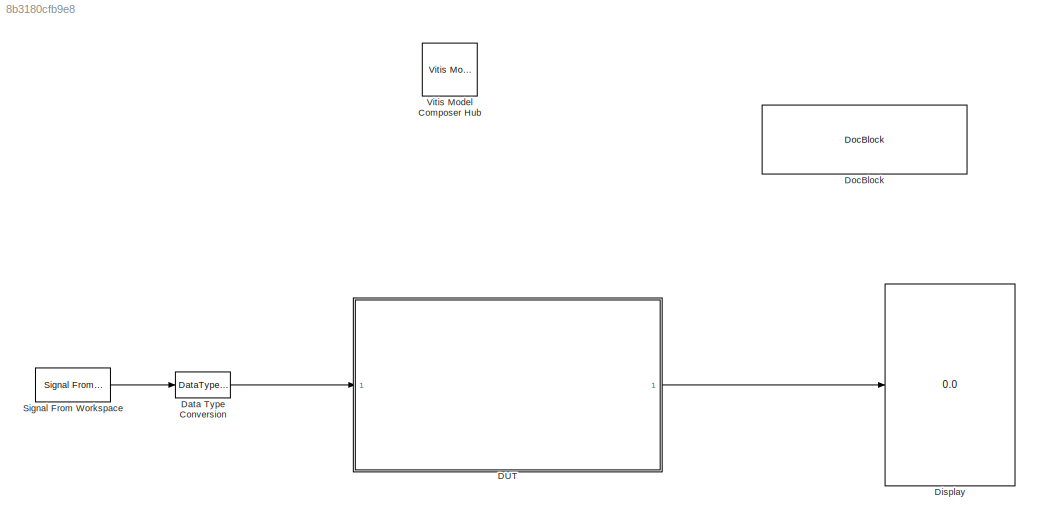
MODEL slx_8b3180cfb9e8
KIND model
CONFIG AbsTol = auto
CONFIG EnableMultiTasking = off
CONFIG FixedStep = auto
CONFIG InitFcn = xlEvaluateHDLBlocks('passThrough')
CONFIG MaxStep = auto
CONFIG MinStep = auto
CONFIG RelTol = 1e-3
CONFIG SampleTimeConstraint = Unconstrained
CONFIG SolverName = FixedStepDiscrete
CONFIG StartTime = 0.0
CONFIG StopTime = 100
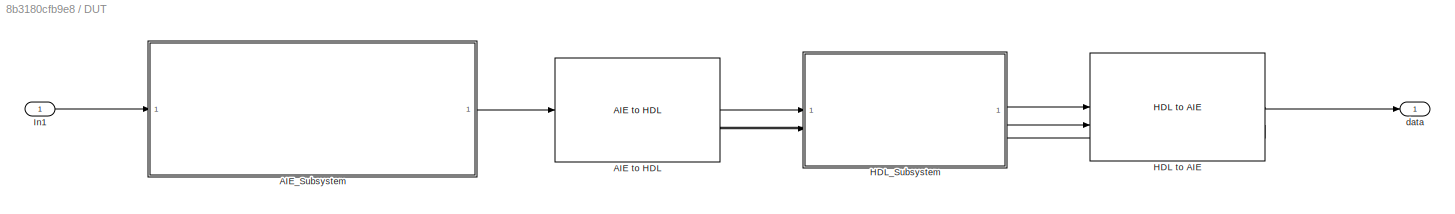
BLOCK [SubSystem] DUT
BLOCK [Reference] DUT/AIE to HDL  REF=aieUtilities/AIE to HDL
  SourceBlock = aieUtilities/AIE to HDL
  SourceType = AIE to HDL
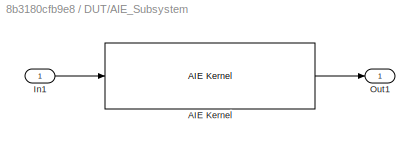
BLOCK [SubSystem] DUT/AIE_Subsystem
BLOCK [Reference] DUT/AIE_Subsystem/AIE Kernel  REF=aieBasic/AIE Kernel
  SourceBlock = aieBasic/AIE Kernel
  SourceType = AIE Kernel Function
BLOCK [Inport] DUT/AIE_Subsystem/In1
BLOCK [Outport] DUT/AIE_Subsystem/Out1
BLOCK [Reference] DUT/HDL to AIE  REF=aieUtilities/HDL to AIE
  SourceBlock = aieUtilities/HDL to AIE
  SourceType = HDL to AIE
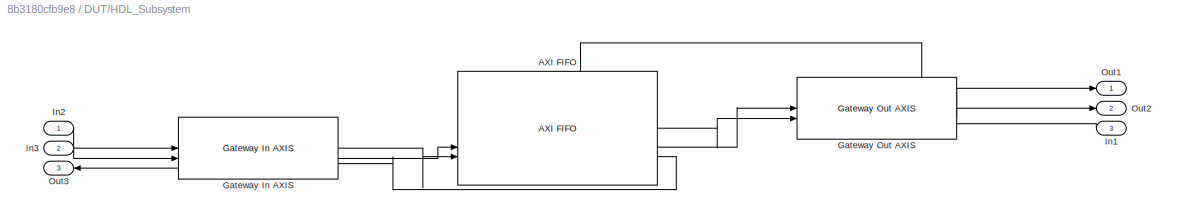
BLOCK [SubSystem] DUT/HDL_Subsystem
  PortSchema = {"entries":[{"content":{"sides":[{"content":{"connectorIds":["In1","In2","Out3"]},"type":"ConnectorPlacement.EquallySpacedRectSide","uuid":"989cb16a-31ef-4a7b-a4d3-adb9fa6297fb"},{"content":{"connectorIds":["Out1","Out2","In3"],"side":"RIGHT"},"type":"ConnectorPlacement.EquallySpacedRectSide","uuid":"9f541dfa-b9f2-4468-aad7-758d6944575e"},{"content":{"connectorIds":[],"side":"TOP"},"type":"Connect...<+268ch>
BLOCK [Reference] DUT/HDL_Subsystem/AXI FIFO  REF=hdlBasic/AXI FIFO
  SourceBlock = hdlBasic/AXI FIFO
  SourceType = AXI FIFO Block Block
BLOCK [Reference] DUT/HDL_Subsystem/Gateway In AXIS  REF=hdlUtilities/Gateway In AXIS
  SourceBlock = hdlUtilities/Gateway In AXIS
  SourceType = Gateway In AXIS
BLOCK [Reference] DUT/HDL_Subsystem/Gateway Out AXIS  REF=hdlUtilities/Gateway Out AXIS
  SourceBlock = hdlUtilities/Gateway Out AXIS
  SourceType = Gateway Out AXIS
BLOCK [Inport] DUT/HDL_Subsystem/In1
  Port = 3
BLOCK [Inport] DUT/HDL_Subsystem/In2
BLOCK [Inport] DUT/HDL_Subsystem/In3
  Port = 2
BLOCK [Outport] DUT/HDL_Subsystem/Out1
BLOCK [Outport] DUT/HDL_Subsystem/Out2
  Port = 2
BLOCK [Outport] DUT/HDL_Subsystem/Out3
  Port = 3
BLOCK [Inport] DUT/In1
BLOCK [Outport] DUT/data
BLOCK [DataTypeConversion] Data Type Conversion
  OutDataTypeStr = int32
  RndMeth = Floor
  SaturateOnIntegerOverflow = off
BLOCK [Display] Display
  Decimation = 1
BLOCK [Reference] DocBlock  REF=simulink/Model-Wide
Utilities/DocBlock
  SourceBlock = simulink/Model-Wide\nUtilities/DocBlock
  SourceType = DocBlock
  UserDataPersistent = on
BLOCK [Reference] Signal From Workspace  REF=dspsrcs4/Signal From
Workspace
  SourceBlock = dspsrcs4/Signal From\nWorkspace
  SourceType = Signal From Workspace
BLOCK [Reference] Vitis Model Composer Hub  REF=vmcUtilities/Vitis Model Composer Hub
  SourceBlock = vmcUtilities/Vitis Model Composer Hub
  SourceType = VMC Hub
  Tag = genX
  UserDataPersistent = on
LINE DUT/AIE to HDL:1 -> DUT/HDL_Subsystem:1
LINE DUT/AIE to HDL:2 -> DUT/HDL_Subsystem:2
LINE DUT/AIE_Subsystem/AIE Kernel:1 -> DUT/AIE_Subsystem/Out1:1
LINE DUT/AIE_Subsystem/In1:1 -> DUT/AIE_Subsystem/AIE Kernel:1
LINE DUT/AIE_Subsystem:1 -> DUT/AIE to HDL:1
LINE DUT/HDL to AIE:1 -> DUT/data:1
LINE DUT/HDL to AIE:2 -> DUT/HDL_Subsystem:3
LINE DUT/HDL_Subsystem/AXI FIFO:1 -> DUT/HDL_Subsystem/Gateway Out AXIS:2
LINE DUT/HDL_Subsystem/AXI FIFO:2 -> DUT/HDL_Subsystem/Gateway Out AXIS:1
LINE DUT/HDL_Subsystem/AXI FIFO:3 -> DUT/HDL_Subsystem/Gateway In AXIS:3
LINE DUT/HDL_Subsystem/Gateway In AXIS:1 -> DUT/HDL_Subsystem/AXI FIFO:3
LINE DUT/HDL_Subsystem/Gateway In AXIS:2 -> DUT/HDL_Subsystem/AXI FIFO:2
LINE DUT/HDL_Subsystem/Gateway In AXIS:3 -> DUT/HDL_Subsystem/Out3:1
LINE DUT/HDL_Subsystem/Gateway Out AXIS:1 -> DUT/HDL_Subsystem/Out1:1
LINE DUT/HDL_Subsystem/Gateway Out AXIS:2 -> DUT/HDL_Subsystem/Out2:1
LINE DUT/HDL_Subsystem/Gateway Out AXIS:3 -> DUT/HDL_Subsystem/AXI FIFO:1
LINE DUT/HDL_Subsystem/In1:1 -> DUT/HDL_Subsystem/Gateway Out AXIS:3
LINE DUT/HDL_Subsystem/In2:1 -> DUT/HDL_Subsystem/Gateway In AXIS:1
LINE DUT/HDL_Subsystem/In3:1 -> DUT/HDL_Subsystem/Gateway In AXIS:2
LINE DUT/HDL_Subsystem:1 -> DUT/HDL to AIE:1
LINE DUT/HDL_Subsystem:2 -> DUT/HDL to AIE:2
LINE DUT/HDL_Subsystem:3 -> DUT/AIE to HDL:2
LINE DUT/In1:1 -> DUT/AIE_Subsystem:1
LINE DUT:1 -> Display:1
LINE Data Type Conversion:1 -> DUT:1
LINE Signal From Workspace:1 -> Data Type Conversion:1
